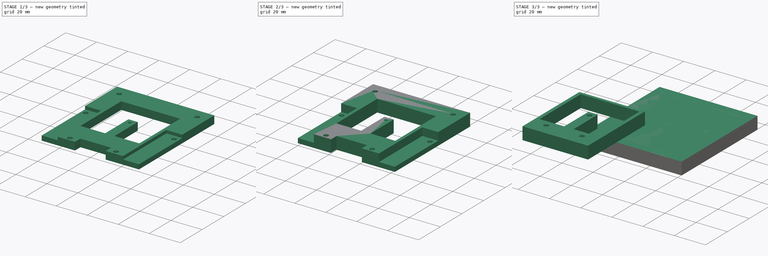
[diagram: build sequence overview — one tinted view per stage of 3, left to right]
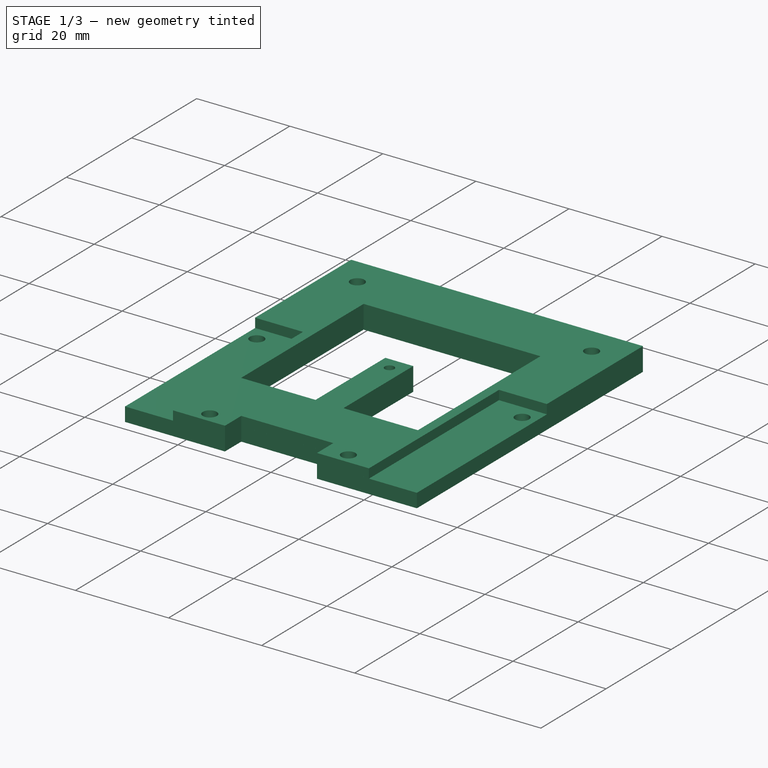
[diagram: stage 1 of 3 — iso view after this stage's code; geometry added in this stage tinted green]
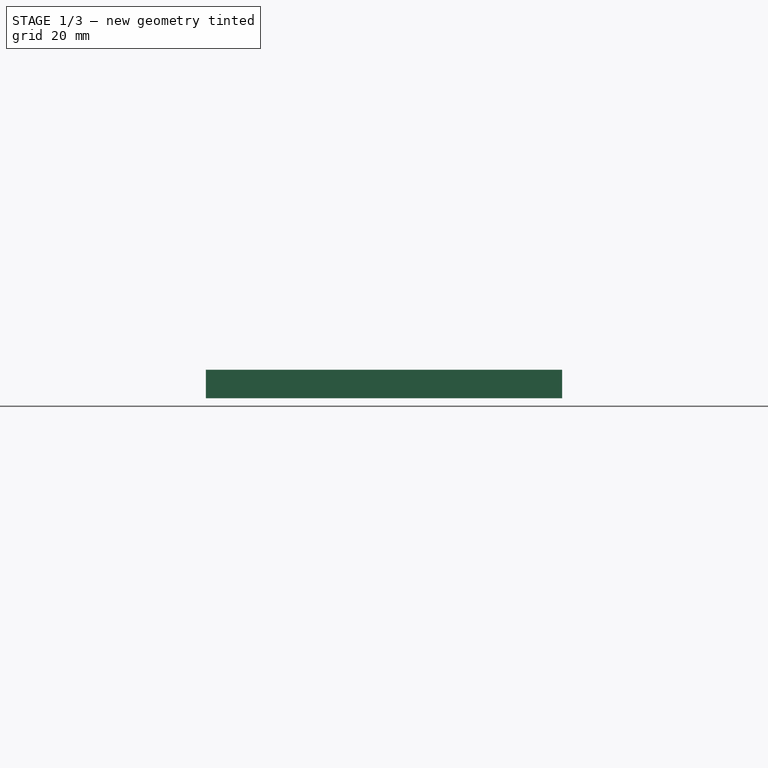
[diagram: stage 1 of 3 — front view after this stage's code; geometry added in this stage tinted green]
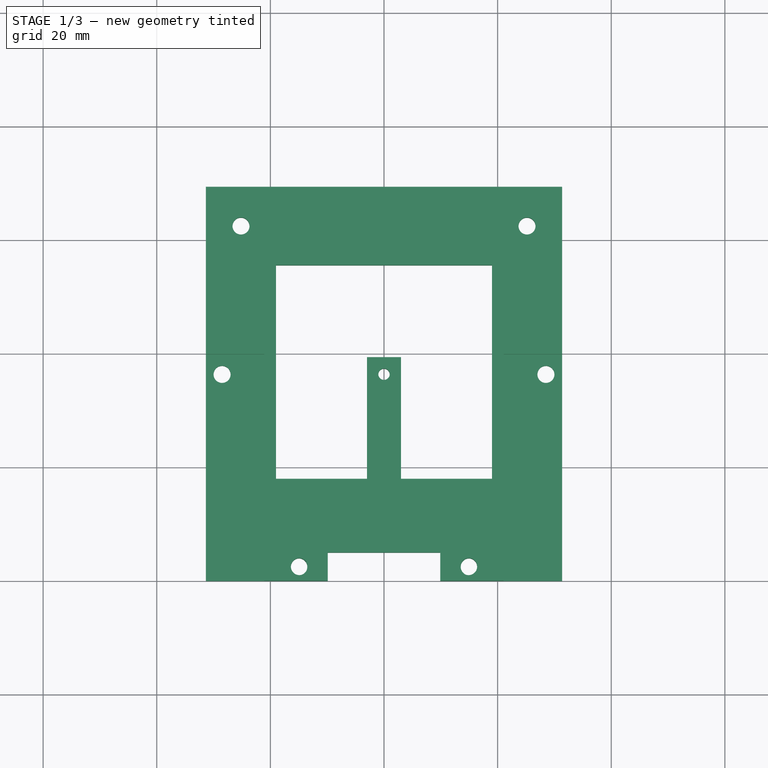
[diagram: stage 1 of 3 — top view after this stage's code; geometry added in this stage tinted green]
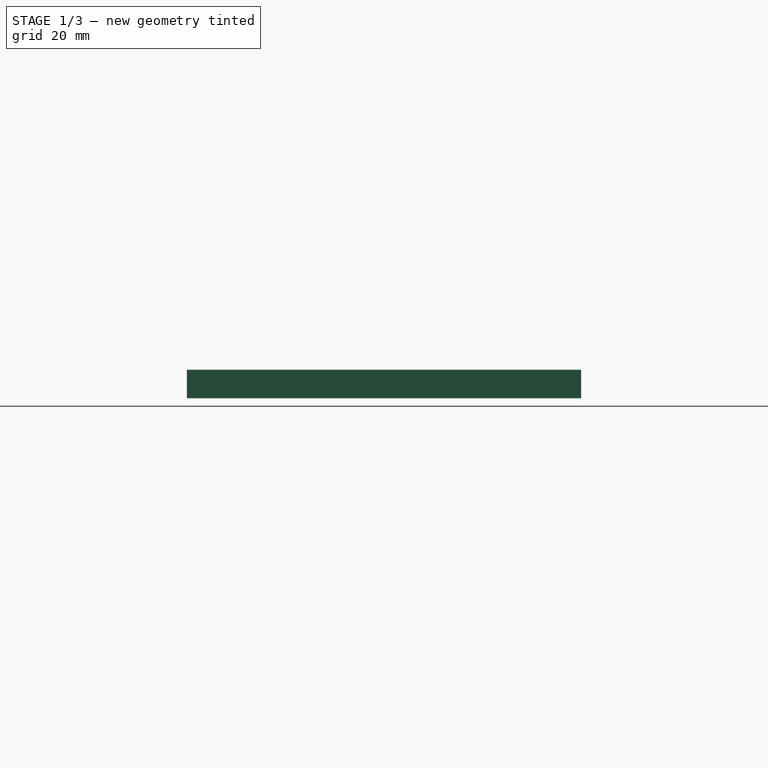
[diagram: stage 1 of 3 — right view after this stage's code; geometry added in this stage tinted green]
FCSTD DOCUMENT  (FreeCAD 0.17R13541 (Git))
Label: fusion_platte
License: All rights reserved
LicenseURL: http://en.wikipedia.org/wiki/All_rights_reserved
objects: Path::FeaturePython×15, Sketcher::SketchObject×3, PartDesign::Pad×3, PartDesign::Body×3, Part::FeaturePython×2, Part::MultiFuse×1, App::FeaturePython×1, Path::FeatureCompoundPython×1
note: 19 computed .brp shape members not serialized (recipe doc carries the construction recipe); baked Part::Feature solids carry a one-line shape summary decoded from their .brp

FEATURE [PartDesign::Body] Body  label="platte1"
  Group = -> [Sketch,Pad]
  Origin = -> Origin
  Tip = -> Pad
FEATURE [Sketcher::SketchObject] Sketch001
  MapMode = 5
  Support = -> [XY_Plane001]
  sketch-geometry (25):
    g0: LineSegment StartX=-31.35 StartY=69.37 StartZ=0 EndX=-31.35 EndY=39.9 EndZ=0
    g1: LineSegment StartX=-31.35 StartY=39.9 StartZ=0 EndX=-21.05 EndY=39.9 EndZ=0
    g2: LineSegment StartX=-21.05 StartY=39.9 StartZ=0 EndX=-21.05 EndY=0 EndZ=0
    g3: LineSegment StartX=-21.05 StartY=0 StartZ=0 EndX=-9.89 EndY=0 EndZ=0
    g4: LineSegment StartX=-9.89 StartY=0 StartZ=0 EndX=-9.89 EndY=5 EndZ=0
    g5: LineSegment StartX=-9.89 StartY=5 StartZ=0 EndX=9.89 EndY=5 EndZ=0
    g6: LineSegment StartX=9.89 StartY=5 StartZ=0 EndX=9.89 EndY=0 EndZ=0
    g7: LineSegment StartX=9.89 StartY=0 StartZ=0 EndX=21.05 EndY=0 EndZ=0
    g8: LineSegment StartX=21.05 StartY=0 StartZ=0 EndX=21.05 EndY=39.9 EndZ=0
    g9: LineSegment StartX=21.05 StartY=39.9 StartZ=0 EndX=31.35 EndY=39.9 EndZ=0
    g10: LineSegment StartX=31.35 StartY=39.9 StartZ=0 EndX=31.35 EndY=69.37 EndZ=0
    g11: LineSegment StartX=31.35 StartY=69.37 StartZ=0 EndX=-31.35 EndY=69.37 EndZ=0
    g12: LineSegment StartX=-19 StartY=55.56 StartZ=0 EndX=-19 EndY=17.96 EndZ=0
    g13: LineSegment StartX=-19 StartY=17.96 StartZ=0 EndX=-3 EndY=17.96 EndZ=0
    g14: LineSegment StartX=-3 StartY=17.96 StartZ=0 EndX=-3 EndY=39.37 EndZ=0
    g15: LineSegment StartX=-3 StartY=39.37 StartZ=0 EndX=3 EndY=39.37 EndZ=0
    g16: LineSegment StartX=3 StartY=39.37 StartZ=0 EndX=3 EndY=17.96 EndZ=0
    g17: LineSegment StartX=3 StartY=17.96 StartZ=0 EndX=19 EndY=17.96 EndZ=0
    g18: LineSegment StartX=19 StartY=17.96 StartZ=0 EndX=19 EndY=55.56 EndZ=0
    g19: LineSegment StartX=19 StartY=55.56 StartZ=0 EndX=-19 EndY=55.56 EndZ=0
    g20: Circle CenterX=0 CenterY=36.37 CenterZ=0 NormalX=0 NormalY=0 NormalZ=1 AngleXU=0 Radius=1
    g21: Circle CenterX=-14.89 CenterY=2.5 CenterZ=0 NormalX=0 NormalY=0 NormalZ=1 AngleXU=0 Radius=1.5
    g22: Circle CenterX=14.89 CenterY=2.5 CenterZ=0 NormalX=0 NormalY=0 NormalZ=1 AngleXU=0 Radius=1.5
    g23: Circle CenterX=-25.17 CenterY=62.46 CenterZ=0 NormalX=0 NormalY=0 NormalZ=1 AngleXU=0 Radius=1.5
    g24: Circle CenterX=25.17 CenterY=62.46 CenterZ=0 NormalX=0 NormalY=0 NormalZ=1 AngleXU=0 Radius=1.5
  constraints (75):
    c: Coincident(g0,g1)
    c: Horizontal(g1)
    c: Coincident(g1,g2)
    c: Vertical(g2)
    c: Coincident(g2,g3)
    c: Coincident(g3,g4)
    c: Vertical(g4)
    c: Coincident(g4,g5)
    c: Horizontal(g5)
    c: Coincident(g5,g6)
    c: Coincident(g6,g7)
    c: Horizontal(g7)
    c: Coincident(g7,g8)
    c: Vertical(g8)
    c: Coincident(g8,g9)
    c: Coincident(g9,g10)
    c: Coincident(g10,g11)
    c: Coincident(g11,g0)
    c: Horizontal(g11)
    c: Vertical(g0)
    c: Vertical(g10)
    c: Vertical(g6)
    c: Horizontal(g3)
    c: Equal(g6,g4)
    c: Equal(g7,g3)
    c: Horizontal(g9)
    c: Equal(g1,g9)
    c: DistanceX(g11,g11) = 62.7
    c: Symmetric(g0,g10,g-2)
    c: DistanceY(g4,g4) = 5
    c: DistanceX(g3,g3) = 11.16
    c: DistanceX(g1,g1) = 10.3
    c: DistanceY(g8,g8) = 39.9
    c: Equal(g2,g8)
    c: DistanceY(g10,g10) = 29.47
    c: PointOnObject(g6,g-1)
    c: Vertical(g12)
    c: Coincident(g12,g13)
    c: Coincident(g13,g14)
    c: Vertical(g14)
    c: Coincident(g14,g15)
    c: Horizontal(g15)
    c: Coincident(g15,g16)
    c: Vertical(g16)
    c: Coincident(g16,g17)
    c: Horizontal(g17)
    c: Coincident(g17,g18)
    c: Vertical(g18)
    c: Coincident(g18,g19)
    c: Horizontal(g19)
    c: Coincident(g19,g12)
    c: Symmetric(g12,g18,g-2)
    c: Horizontal(g13)
    c: DistanceX(g19,g19) = 38
    c: DistanceX(g13,g13) = 16
    c: Equal(g13,g17)
    c: DistanceY(g12,g12) = 37.6
    c: Distance(g18,g11) = 13.81
    c: Equal(g18,g12)
    c: DistanceY(g14,g14) = 21.41
    c: PointOnObject(g20,g-2)
    c: Radius(g20) = 1
    c: Distance(g20,g17) = 18.41
    c: Distance(g21,g-1) = 2.5
    c: Distance(g22,g-1) = 2.5
    c: Distance(g21,g2) = 6.16
    c: Distance(g22,g8) = 6.16
    c: Radius(g22) = 1.5
    c: Radius(g21) = 1.5
    c: Radius(g23) = 1.5
    c: Radius(g24) = 1.5
    c: Distance(g23,g11) = 6.91
    c: Distance(g24,g11) = 6.91
    c: Distance(g23,g0) = 6.18
    c: Distance(g24,g10) = 6.18
FEATURE [PartDesign::Pad] Pad001
  Length = 5
  Length2 = 100
  Profile = -> Sketch001
  Type = 0
FEATURE [PartDesign::Body] Body001  label="Platte2"
  Group = -> [Sketch001,Pad001]
  Origin = -> Origin001
  Placement = pos=(0,0,3) rot=(0,0,1;0rad)
  Tip = -> Pad001
FEATURE [Sketcher::SketchObject] Sketch002
  MapMode = 5
  Support = -> [XY_Plane002]
  sketch-geometry (23):
    g0: LineSegment StartX=-31.35 StartY=69.37 StartZ=0 EndX=-31.35 EndY=0 EndZ=0
    g1: LineSegment StartX=-31.35 StartY=0 StartZ=0 EndX=-10 EndY=0 EndZ=0
    g2: LineSegment StartX=-10 StartY=0 StartZ=0 EndX=-10 EndY=5 EndZ=0
    g3: LineSegment StartX=-10 StartY=5 StartZ=0 EndX=10 EndY=5 EndZ=0
    g4: LineSegment StartX=10 StartY=5 StartZ=0 EndX=10 EndY=0 EndZ=0
    g5: LineSegment StartX=10 StartY=0 StartZ=0 EndX=31.35 EndY=0 EndZ=0
    g6: LineSegment StartX=31.35 StartY=0 StartZ=0 EndX=31.35 EndY=69.37 EndZ=0
    g7: LineSegment StartX=31.35 StartY=69.37 StartZ=0 EndX=-31.35 EndY=69.37 EndZ=0
    g8: LineSegment StartX=-19 StartY=55.56 StartZ=0 EndX=-19 EndY=17.96 EndZ=0
    g9: LineSegment StartX=-19 StartY=17.96 StartZ=0 EndX=-3 EndY=17.96 EndZ=0
    g10: LineSegment StartX=-3 StartY=17.96 StartZ=0 EndX=-3 EndY=39.36 EndZ=0
    g11: LineSegment StartX=-3 StartY=39.36 StartZ=0 EndX=3 EndY=39.36 EndZ=0
    g12: LineSegment StartX=3 StartY=39.36 StartZ=0 EndX=3 EndY=17.96 EndZ=0
    g13: LineSegment StartX=3 StartY=17.96 StartZ=0 EndX=19 EndY=17.96 EndZ=0
    g14: LineSegment StartX=19 StartY=17.96 StartZ=0 EndX=19 EndY=55.56 EndZ=0
    g15: LineSegment StartX=19 StartY=55.56 StartZ=0 EndX=-19 EndY=55.56 EndZ=0
    g16: Circle CenterX=-25.17 CenterY=62.47 CenterZ=0 NormalX=0 NormalY=0 NormalZ=1 AngleXU=0 Radius=1.5
    g17: Circle CenterX=25.17 CenterY=62.47 CenterZ=0 NormalX=0 NormalY=0 NormalZ=1 AngleXU=0 Radius=1.5
    g18: Circle CenterX=-28.5 CenterY=36.37 CenterZ=0 NormalX=0 NormalY=0 NormalZ=1 AngleXU=0 Radius=1.5
    g19: Circle CenterX=28.5 CenterY=36.37 CenterZ=0 NormalX=0 NormalY=0 NormalZ=1 AngleXU=0 Radius=1.5
    g20: Circle CenterX=-15 CenterY=2.5 CenterZ=0 NormalX=0 NormalY=0 NormalZ=1 AngleXU=0 Radius=1.5
    g21: Circle CenterX=15 CenterY=2.5 CenterZ=0 NormalX=0 NormalY=0 NormalZ=1 AngleXU=0 Radius=1.5
    g22: Circle CenterX=0 CenterY=36.37 CenterZ=0 NormalX=0 NormalY=0 NormalZ=1 AngleXU=0 Radius=1
  constraints (69):
    c: Vertical(g0)
    c: Coincident(g0,g1)
    c: Horizontal(g1)
    c: Coincident(g1,g2)
    c: Coincident(g2,g3)
    c: Horizontal(g3)
    c: Coincident(g3,g4)
    c: Vertical(g4)
    c: Coincident(g4,g5)
    c: Coincident(g5,g6)
    c: Coincident(g6,g7)
    c: Coincident(g7,g0)
    c: Horizontal(g7)
    c: Vertical(g6)
    c: Vertical(g2)
    c: Horizontal(g5)
    c: DistanceY(g2,g2) = 5
    c: PointOnObject(g0,g-1)
    c: Equal(g1,g5)
    c: Symmetric(g0,g6,g-2)
    c: DistanceY(g0,g0) = 69.37
    c: Equal(g6,g0)
    c: DistanceX(g7,g7) = 62.7
    c: DistanceX(g3,g3) = 20
    c: Vertical(g8)
    c: Coincident(g8,g9)
    c: Coincident(g9,g10)
    c: Coincident(g10,g11)
    c: Coincident(g11,g12)
    c: Vertical(g12)
    c: Coincident(g12,g13)
    c: Coincident(g13,g14)
    c: Coincident(g14,g15)
    c: Coincident(g15,g8)
    c: Horizontal(g15)
    c: Horizontal(g9)
    c: Horizontal(g13)
    c: Horizontal(g11)
    c: Vertical(g14)
    c: Vertical(g10)
    c: Equal(g10,g12)
    c: Equal(g13,g9)
    c: Symmetric(g8,g14,g-2)
    c: DistanceY(g14,g14) = 37.6
    c: Distance(g14,g7) = 13.81
    c: DistanceX(g11,g11) = 6
    c: DistanceX(g15,g15) = 38
    c: DistanceY(g12,g12) = 21.4
    c: Distance(g20,g1) = 2.5
    c: Distance(g21,g5) = 2.5
    c: Radius(g21) = 1.5
    c: Radius(g20) = 1.5
    c: Radius(g18) = 1.5
    c: Radius(g19) = 1.5
    c: Radius(g17) = 1.5
    c: Radius(g16) = 1.5
    c: Distance(g21,g6) = 16.35
    c: Distance(g20,g0) = 16.35
    c: Distance(g19,g6) = 2.85
    c: Distance(g18,g0) = 2.85
    c: Distance(g19,g5) = 36.37
    c: Distance(g18,g1) = 36.37
    c: Distance(g16,g0) = 6.18
    c: Distance(g17,g6) = 6.18
    c: Distance(g17,g7) = 6.9
    c: Distance(g16,g7) = 6.9
    c: PointOnObject(g22,g-2)
    c: Distance(g22,g13) = 18.41
    c: Radius(g22) = 1
FEATURE [PartDesign::Pad] Pad002
  Length = 3
  Length2 = 100
  Profile = -> Sketch002
  Type = 0
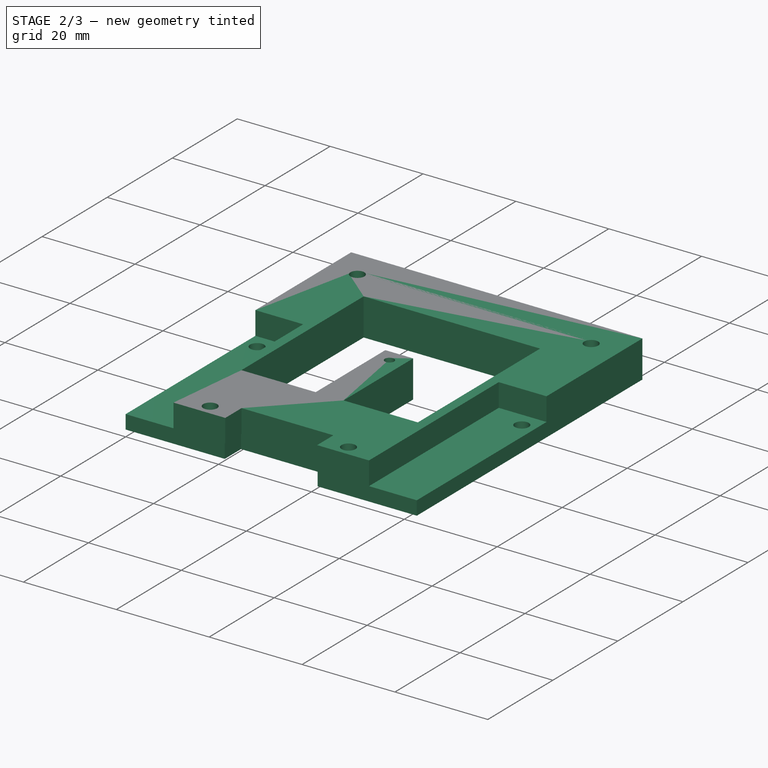
[diagram: stage 2 of 3 — iso view after this stage's code; geometry added in this stage tinted green]
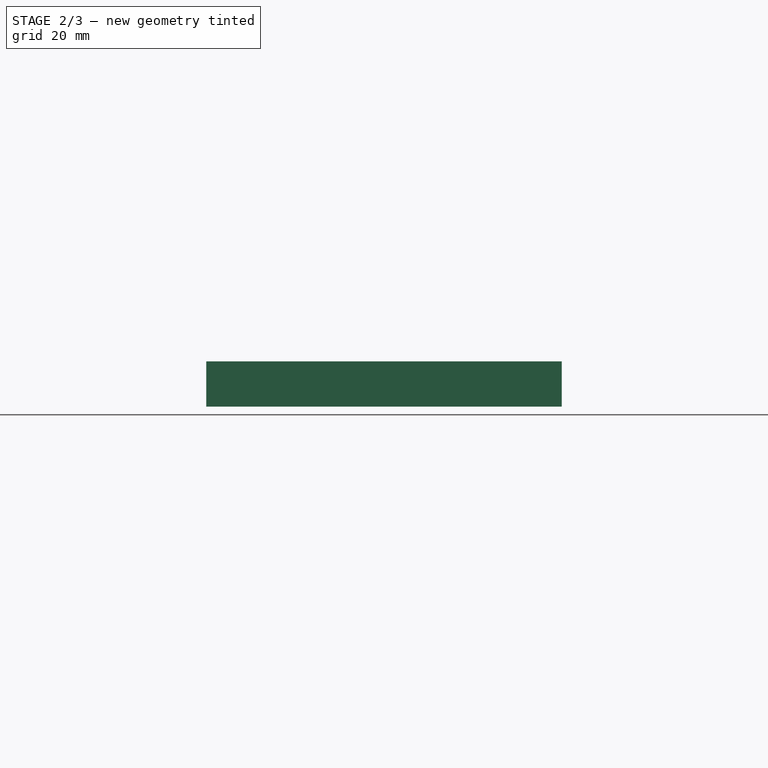
[diagram: stage 2 of 3 — front view after this stage's code; geometry added in this stage tinted green]
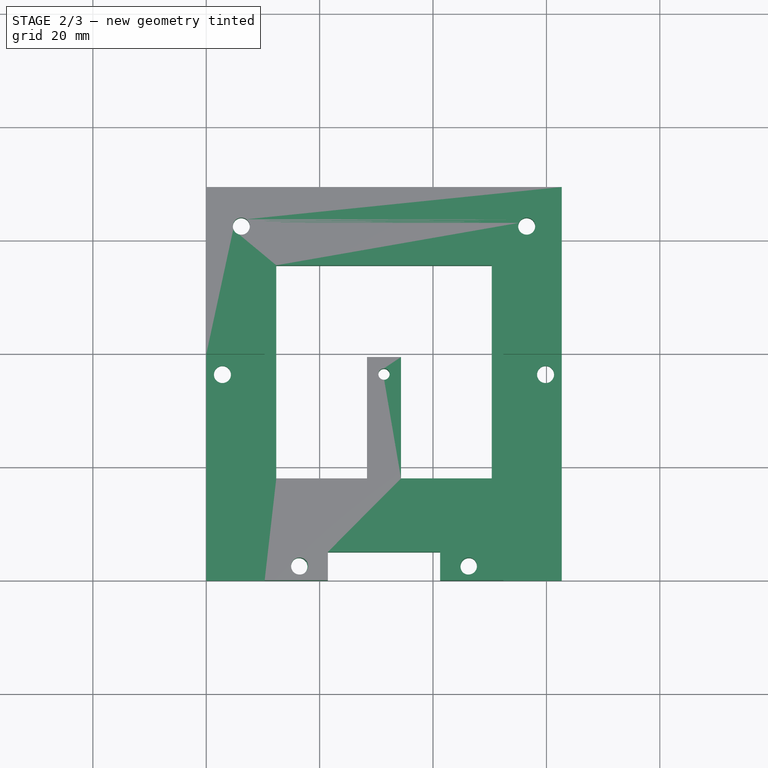
[diagram: stage 2 of 3 — top view after this stage's code; geometry added in this stage tinted green]
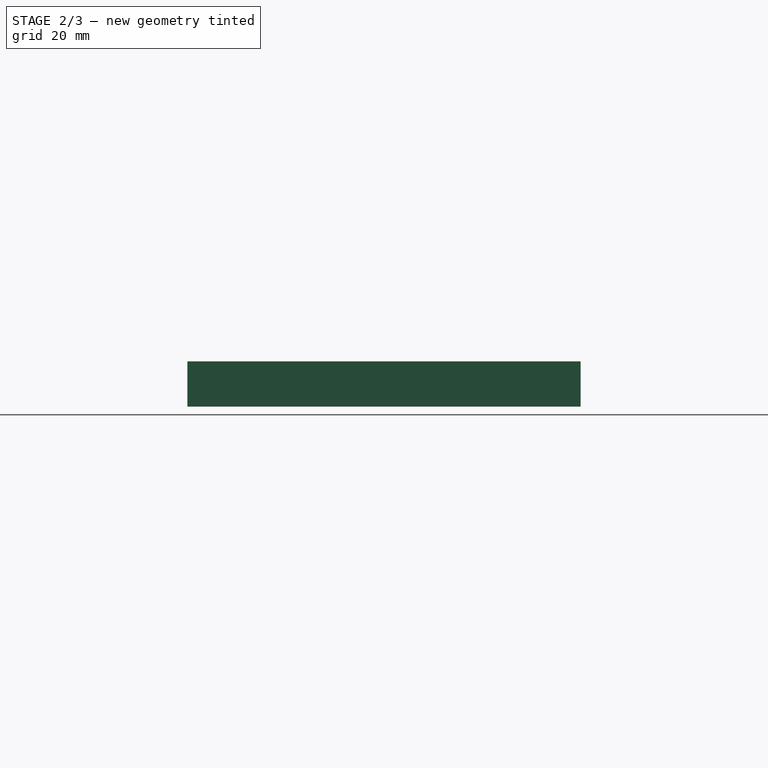
[diagram: stage 2 of 3 — right view after this stage's code; geometry added in this stage tinted green]
FEATURE [PartDesign::Body] Body002  label="platte3"
  Group = -> [Sketch002,Pad002]
  Origin = -> Origin002
  Tip = -> Pad002
FEATURE [Part::MultiFuse] Fusion
  Shapes = -> [Body001,Body002]
FEATURE [App::FeaturePython] SetupSheet  # Path/CAM operation (typed FeaturePython)
  ClearanceHeightExpression = StartDepth+SetupSheet.ClearanceHeightOffset
  ClearanceHeightOffset = 5
  FinalDepthExpression = OpFinalDepth
  HorizRapid = 0
  SafeHeightExpression = StartDepth+SetupSheet.SafeHeightOffset
  SafeHeightOffset = 3
  StartDepthExpression = OpStartDepth
  StepDownExpression = OpToolDiameter
  VertRapid = 0
FEATURE [Part::FeaturePython] Clone  label="Base-Fusion"  # Draft clone (typed FeaturePython)
  AttacherType = Attacher::AttachEngine3D
  Fuse = false
  Objects = -> [Fusion]
  PathResource = Base
  Placement = pos=(31.35,0,-8) rot=(0,0,1;0rad)
  Scale = (1,1,1)
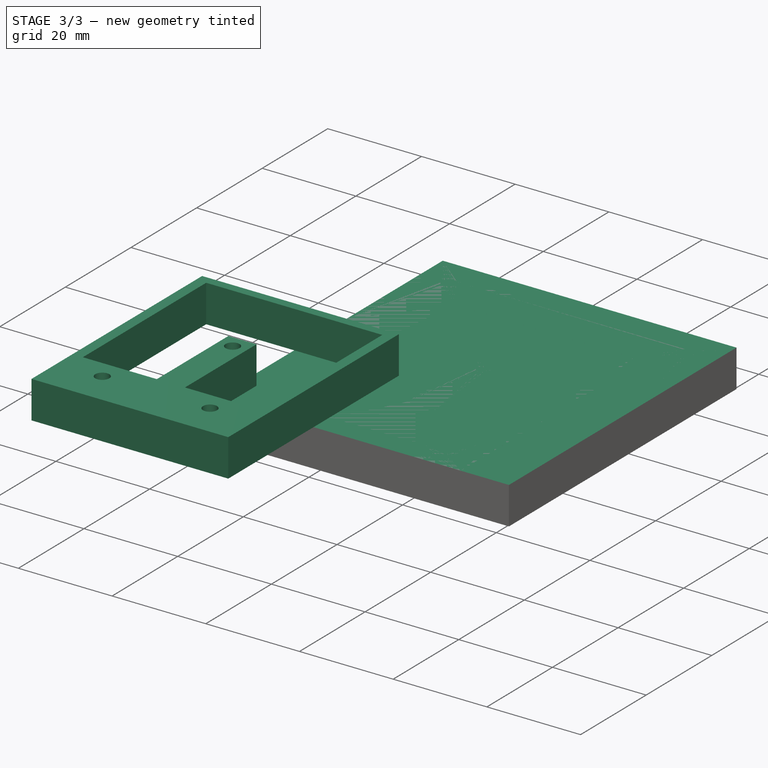
[diagram: stage 3 of 3 — iso view after this stage's code; geometry added in this stage tinted green]
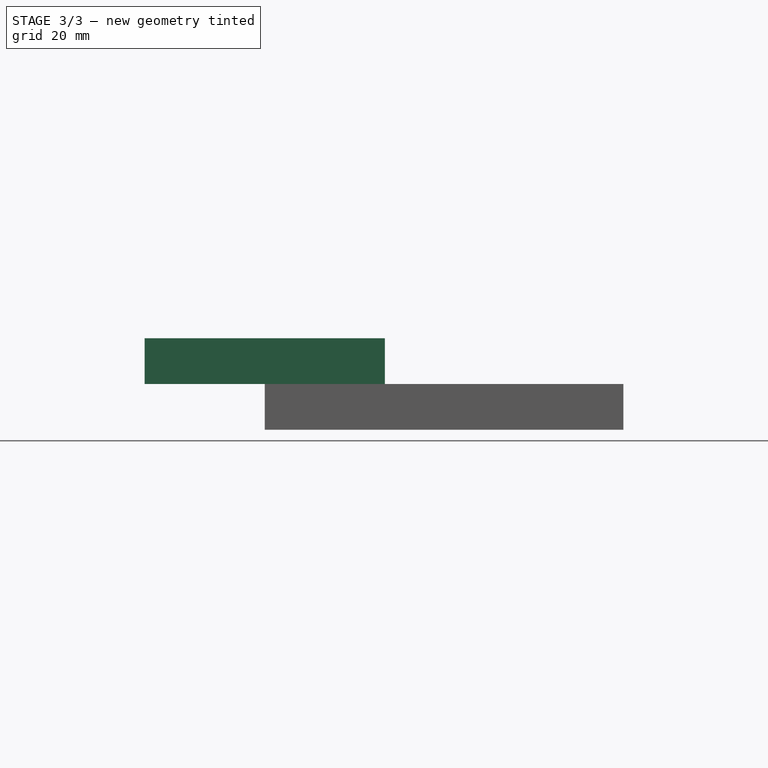
[diagram: stage 3 of 3 — front view after this stage's code; geometry added in this stage tinted green]
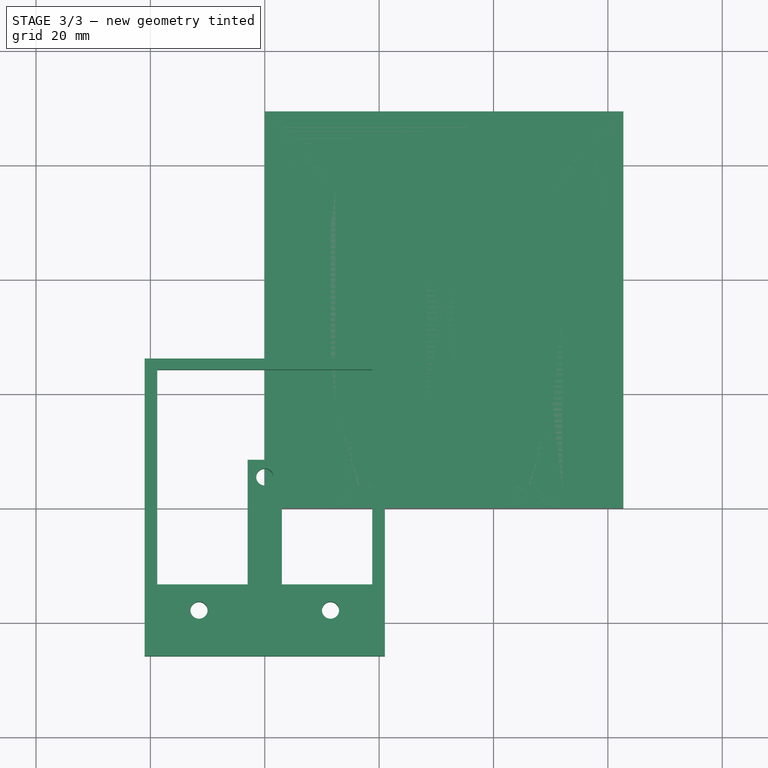
[diagram: stage 3 of 3 — top view after this stage's code; geometry added in this stage tinted green]
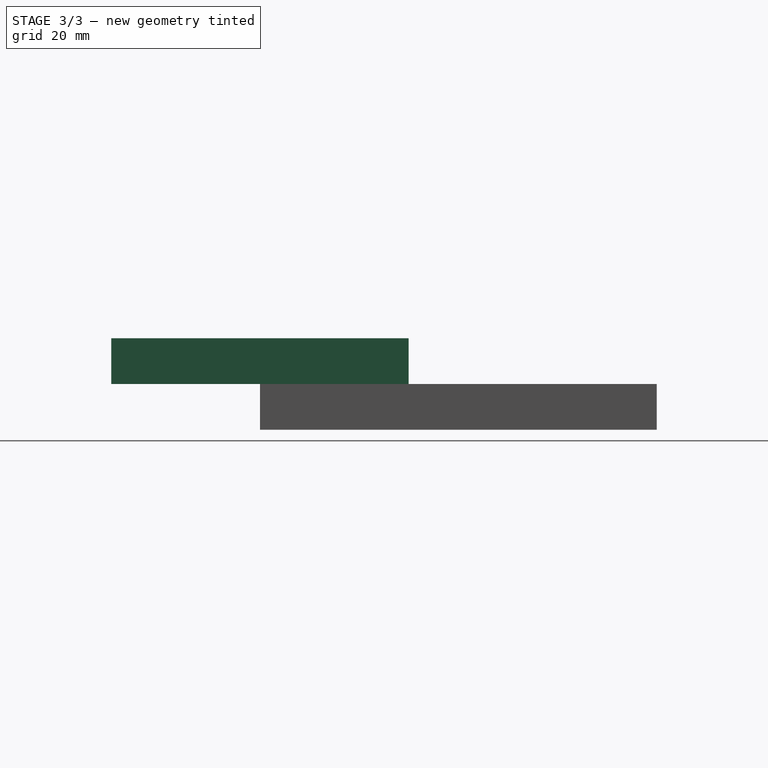
[diagram: stage 3 of 3 — right view after this stage's code; geometry added in this stage tinted green]
FEATURE [Sketcher::SketchObject] Sketch
  MapMode = 5
  Support = -> [XY_Plane]
  sketch-geometry (15):
    g0: LineSegment StartX=-21 StartY=26 StartZ=0 EndX=21 EndY=26 EndZ=0
    g1: LineSegment StartX=21 StartY=26 StartZ=0 EndX=21 EndY=-26 EndZ=0
    g2: LineSegment StartX=21 StartY=-26 StartZ=0 EndX=-21 EndY=-26 EndZ=0
    g3: LineSegment StartX=-21 StartY=-26 StartZ=0 EndX=-21 EndY=26 EndZ=0
    g4: LineSegment StartX=-18.8 StartY=24.1 StartZ=0 EndX=-18.8 EndY=-13.5 EndZ=0
    g5: LineSegment StartX=-18.8 StartY=-13.5 StartZ=0 EndX=-3 EndY=-13.5 EndZ=0
    g6: LineSegment StartX=-3 StartY=-13.5 StartZ=0 EndX=-3 EndY=8.3 EndZ=0
    g7: LineSegment StartX=-3 StartY=8.3 StartZ=0 EndX=3 EndY=8.3 EndZ=0
    g8: LineSegment StartX=3 StartY=8.3 StartZ=0 EndX=3 EndY=-13.5 EndZ=0
    g9: LineSegment StartX=3 StartY=-13.5 StartZ=0 EndX=18.8 EndY=-13.5 EndZ=0
    g10: LineSegment StartX=18.8 StartY=-13.5 StartZ=0 EndX=18.8 EndY=24.1 EndZ=0
    g11: LineSegment StartX=18.8 StartY=24.1 StartZ=0 EndX=-18.8 EndY=24.1 EndZ=0
    g12: Circle CenterX=0 CenterY=5.3 CenterZ=0 NormalX=0 NormalY=0 NormalZ=1 AngleXU=0 Radius=1.5
    g13: Circle CenterX=11.5 CenterY=-18 CenterZ=0 NormalX=0 NormalY=0 NormalZ=1 AngleXU=0 Radius=1.5
    g14: Circle CenterX=-11.5 CenterY=-18 CenterZ=0 NormalX=0 NormalY=0 NormalZ=1 AngleXU=0 Radius=1.5
  constraints (45):
    c: Coincident(g0,g1)
    c: Coincident(g1,g2)
    c: Coincident(g2,g3)
    c: Coincident(g3,g0)
    c: Horizontal(g0)
    c: Horizontal(g2)
    c: Vertical(g1)
    c: Vertical(g3)
    c: Symmetric(g0,g0,g-2)
    c: Symmetric(g0,g2,g-1)
    c: DistanceY(g3,g3) = 52
    c: DistanceX(g0,g0) = 42
    c: Vertical(g4)
    c: Coincident(g4,g5)
    c: Horizontal(g5)
    c: Coincident(g5,g6)
    c: Coincident(g6,g7)
    c: Coincident(g7,g8)
    c: Vertical(g8)
    c: Coincident(g8,g9)
    c: Coincident(g9,g10)
    c: Vertical(g10)
    c: Coincident(g10,g11)
    c: Coincident(g11,g4)
    c: Horizontal(g11)
    c: Vertical(g6)
    c: Horizontal(g7)
    c: Horizontal(g9)
    c: Equal(g10,g4)
    c: Equal(g5,g9)
    c: Distance(g4,g3) = 2.2
    c: Distance(g5,g3) = 18
    c: Distance(g8,g3) = 24
    c: Distance(g8,g2) = 12.5
    c: Distance(g4,g2) = 50.1
    c: Distance(g7,g2) = 34.3
    c: PointOnObject(g12,g-2)
    c: Distance(g14,g3) = 9.5
    c: Distance(g13,g2) = 8
    c: Distance(g14,g2) = 8
    c: Distance(g13,g3) = 32.5
    c: Radius(g14) = 1.5
    c: Radius(g13) = 1.5
    c: Distance(g12,g2) = 31.3
    c: Radius(g12) = 1.5
FEATURE [PartDesign::Pad] Pad
  Length = 8
  Length2 = 100
  Profile = -> Sketch
  Type = 0
FEATURE [Path::FeaturePython] Default_Tool  label="Default Tool"  # Path/CAM operation (typed FeaturePython)
  HorizFeed = 0
  HorizRapid = 0
  SpindleDir = 0
  SpindleSpeed = 0
  ToolNumber = 1
  VertFeed = 0
  VertRapid = 0
  expr: HorizRapid = SetupSheet.HorizRapid
  expr: VertRapid = SetupSheet.VertRapid
FEATURE [Part::FeaturePython] Stock001  # WARN: FeaturePython — macro-defined, semantics opaque (R4)
  Height = 8
  Length = 62.7
  Placement = pos=(0,0,-8) rot=(0,0,1;0rad)
  StockType = CreateBox
  Width = 69.37
FEATURE [Path::FeaturePython] T2__fraiser_one_  label="T2: fraiser one "  # Path/CAM operation (typed FeaturePython)
  HorizFeed = 33
  HorizRapid = 0
  SpindleDir = 0
  SpindleSpeed = 15000
  ToolNumber = 2
  VertFeed = 10
  VertRapid = 0
  expr: HorizRapid = SetupSheet.HorizRapid
  expr: VertRapid = SetupSheet.VertRapid
FEATURE [Path::FeaturePython] T7__drill2_5  label="T7: drill2.5"  # Path/CAM operation (typed FeaturePython)
  HorizFeed = 33
  HorizRapid = 0
  SpindleDir = 0
  SpindleSpeed = 24000
  ToolNumber = 7
  VertFeed = 5
  VertRapid = 0
  expr: HorizRapid = SetupSheet.HorizRapid
  expr: VertRapid = SetupSheet.VertRapid
FEATURE [Path::FeaturePython] T8__2mm_drill  label="T8: 2mm drill"  # Path/CAM operation (typed FeaturePython)
  HorizFeed = 33
  HorizRapid = 0
  SpindleDir = 0
  SpindleSpeed = 24000
  ToolNumber = 8
  VertFeed = 5
  VertRapid = 0
  expr: HorizRapid = SetupSheet.HorizRapid
  expr: VertRapid = SetupSheet.VertRapid
FEATURE [Path::FeaturePython] Profile_Edges  # Path/CAM operation (typed FeaturePython)
  Active = true
  AreaParams:
    OpenMode = 0
    Angle = 45.0
    MinArcPoints = 4
    Coplanar = 0
    Tolerance = 1e-07
    CleanDistance = 0.0
    PocketExtraOffset = 0.0
    RoundPrecision = 0.0
    AngleShift = 0.0
    SubjectFill = 0
    PocketMode = 0
    Simplify = False
    SectionTolerance = 1e-06
    MaxArcPoints = 100
    Offset = -3.0
    Accuracy = 0.01
    PocketStepover = 0.0
    ClipFill = 0
    ToolRadius = 1.0
    Outline = False
    ClipperScale = 10000000.0
    FromCenter = False
    Explode = False
    EndType = 0
    Shift = 0.0
    ExtraPass = 0
    Project = False
    JoinType = 0
    Thicken = False
    Stepdown = 1.0
    SectionMode = 2
    MiterLimit = 2.0
    Deflection = 0.01
    Reorient = True
    FitArcs = True
    SectionCount = -1
    SectionOffset = 0.0
    Stepover = 0.0
    Unit = 1.0
    Fill = 0
  Base = -> [Clone]
  ClearanceHeight = 5
  Direction = 0
  FinalDepth = -8
  JoinType = 0
  MiterLimit = 0.1
  OffsetExtra = 0
  OpFinalDepth = 0
  OpStartDepth = 6
  OpToolDiameter = 6
  PathParams = {'resume_height': 3.0, 'feedrate': 33.0, 'verbose': True, 'orientation': 1, 'return_end': True, 'preamble': False, 'retraction': 5.0, 'feedrate_v': 10.0}
  SafeHeight = 3
  Side = 1
  StartDepth = 0
  StartPoint = (0,0,0)
  StepDown = 6
  ToolController = -> T2__fraiser_one_
  UseComp = true
  UseStartPoint = false
  expr: ClearanceHeight = StartDepth + SetupSheet.ClearanceHeightOffset
  expr: SafeHeight = StartDepth + SetupSheet.SafeHeightOffset
  expr: StepDown = OpToolDiameter
FEATURE [Path::FeaturePython] RampEntryDressup  # Path/CAM operation (typed FeaturePython)
  Angle = 60
  Base = -> Profile_Edges
  CustomFeedRate = 0
  Method = 2
  RampFeedRate = 0
FEATURE [Path::FeaturePython] Profile_Edges001  # Path/CAM operation (typed FeaturePython)
  Active = true
  AreaParams:
    OpenMode = 0
    Angle = 45.0
    MinArcPoints = 4
    Coplanar = 0
    Tolerance = 1e-07
    CleanDistance = 0.0
    PocketExtraOffset = 0.0
    RoundPrecision = 0.0
    AngleShift = 0.0
    SubjectFill = 0
    PocketMode = 0
    Simplify = False
    SectionTolerance = 1e-06
    MaxArcPoints = 100
    Offset = 3.0
    Accuracy = 0.01
    PocketStepover = 0.0
    ClipFill = 0
    ToolRadius = 1.0
    Outline = False
    ClipperScale = 10000000.0
    FromCenter = False
    Explode = False
    EndType = 0
    Shift = 0.0
    ExtraPass = 0
    Project = False
    JoinType = 0
    Thicken = False
    Stepdown = 1.0
    SectionMode = 2
    MiterLimit = 2.0
    Deflection = 0.01
    Reorient = True
    FitArcs = True
    SectionCount = -1
    SectionOffset = 0.0
    Stepover = 0.0
    Unit = 1.0
    Fill = 0
  Base = -> [Clone]
  ClearanceHeight = 5
  Direction = 0
  FinalDepth = -5
  JoinType = 0
  MiterLimit = 0.1
  OffsetExtra = 0
  OpFinalDepth = 0
  OpStartDepth = 6
  OpToolDiameter = 6
  PathParams = {'resume_height': 3.0, 'feedrate': 33.0, 'verbose': True, 'orientation': 1, 'return_end': True, 'preamble': False, 'retraction': 5.0, 'feedrate_v': 10.0}
  SafeHeight = 3
  Side = 0
  StartDepth = 0
  StartPoint = (0,0,0)
  StepDown = 6
  ToolController = -> T2__fraiser_one_
  UseComp = true
  UseStartPoint = false
  expr: ClearanceHeight = StartDepth + SetupSheet.ClearanceHeightOffset
  expr: SafeHeight = StartDepth + SetupSheet.SafeHeightOffset
  expr: StepDown = OpToolDiameter
FEATURE [Path::FeaturePython] DogboneDressup  # Path/CAM operation (typed FeaturePython)
  Base = -> Profile_Edges001
  Custom = 0
  Incision = 0
  Side = 1
  Style = 2
FEATURE [Path::FeaturePython] MillFace  # Path/CAM operation (typed FeaturePython)
  Active = true
  AreaParams:
    OpenMode = 0
    Angle = 45.0
    MinArcPoints = 4
    Coplanar = 0
    Tolerance = 1e-07
    CleanDistance = 0.0
    PocketExtraOffset = 0.0
    RoundPrecision = 0.0
    AngleShift = 0.0
    SubjectFill = 0
    PocketMode = 2
    Simplify = False
    SectionTolerance = 1e-06
    MaxArcPoints = 100
    Offset = 0.0
    Accuracy = 0.01
    PocketStepover = 3.0
    ClipFill = 0
    ToolRadius = 3.0
    Outline = False
    ClipperScale = 10000000.0
    FromCenter = True
    Explode = False
    EndType = 0
    Shift = 0.0
    ExtraPass = 0
    Project = False
    JoinType = 0
    Thicken = False
    Stepdown = 1.0
    SectionMode = 2
    MiterLimit = 2.0
    Deflection = 0.01
    Reorient = True
    FitArcs = True
    SectionCount = -1
    SectionOffset = 0.0
    Stepover = 0.0
    Unit = 1.0
    Fill = 0
  Base = -> [Clone]
  BoundaryShape = 0
  ClearanceHeight = 5
  CutMode = 0
  ExtraOffset = 0
  FinalDepth = -5
  FinishDepth = 0
  KeepToolDown = false
  MinTravel = false
  OffsetPattern = 1
  OpFinalDepth = -5
  OpStartDepth = 0
  OpToolDiameter = 6
  PathParams = {'resume_height': 3.0, 'feedrate': 33.0, 'verbose': True, 'orientation': 1, 'return_end': True, 'preamble': False, 'retraction': 5.0, 'feedrate_v': 10.0}
  SafeHeight = 3
  StartAt = 0
  StartDepth = 0
  StartPoint = (0,0,0)
  StepDown = 6
  StepOver = 50
  ToolController = -> T2__fraiser_one_
  UseStartPoint = false
  ZigZagAngle = 45
  expr: ClearanceHeight = StartDepth + SetupSheet.ClearanceHeightOffset
  expr: SafeHeight = StartDepth + SetupSheet.SafeHeightOffset
  expr: StepDown = OpToolDiameter
  expr: FinalDepth = OpFinalDepth
  expr: StartDepth = OpStartDepth
FEATURE [Path::FeaturePython] Contour  # Path/CAM operation (typed FeaturePython)
  Active = true
  AreaParams:
    OpenMode = 0
    Angle = 45.0
    MinArcPoints = 4
    Coplanar = 2
    Tolerance = 1e-07
    CleanDistance = 0.0
    PocketExtraOffset = 0.0
    RoundPrecision = 0.0
    AngleShift = 0.0
    SubjectFill = 0
    PocketMode = 0
    Simplify = False
    SectionTolerance = 1e-06
    MaxArcPoints = 100
    Offset = 3.0
    Accuracy = 0.01
    PocketStepover = 0.0
    ClipFill = 0
    ToolRadius = 1.0
    Outline = False
    ClipperScale = 10000000.0
    FromCenter = False
    Explode = False
    EndType = 0
    Shift = 0.0
    ExtraPass = 0
    Project = False
    JoinType = 0
    Thicken = False
    Stepdown = 1.0
    SectionMode = 2
    MiterLimit = 2.0
    Deflection = 0.01
    Reorient = True
    FitArcs = True
    SectionCount = -1
    SectionOffset = 0.0
    Stepover = 0.0
    Unit = 1.0
    Fill = 0
  ClearanceHeight = 5
  Direction = 0
  FinalDepth = -8
  JoinType = 0
  MiterLimit = 0.1
  OffsetExtra = 0
  OpFinalDepth = -8
  OpStartDepth = 0
  OpToolDiameter = 6
  PathParams = {'resume_height': 3.0, 'feedrate': 33.0, 'verbose': True, 'orientation': 1, 'return_end': True, 'preamble': False, 'retraction': 5.0, 'feedrate_v': 10.0}
  SafeHeight = 3
  Side = 0
  StartDepth = 0
  StartPoint = (0,0,0)
  StepDown = 6
  ToolController = -> T2__fraiser_one_
  UseComp = true
  UseStartPoint = false
  expr: ClearanceHeight = StartDepth + SetupSheet.ClearanceHeightOffset
  expr: SafeHeight = StartDepth + SetupSheet.SafeHeightOffset
  expr: StepDown = OpToolDiameter
  expr: FinalDepth = OpFinalDepth
  expr: StartDepth = OpStartDepth
FEATURE [Path::FeaturePython] DogboneDressup001  # Path/CAM operation (typed FeaturePython)
  Base = -> Contour
  Custom = 0
  Incision = 0
  Side = 1
  Style = 2
FEATURE [Path::FeaturePython] TagDressup  # Path/CAM operation (typed FeaturePython)
  Angle = 35
  Base = -> DogboneDressup001
  Height = 3
  Positions = (3) [(31.35,72.37,0),(65.7,34.685,0),(-3,34.685,0)]
  Radius = 0
  SegmentationFactor = 50
  Width = 8
FEATURE [Path::FeaturePython] Drilling  # Path/CAM operation (typed FeaturePython)
  Active = true
  AddTipLength = false
  Base = -> [Clone]
  ClearanceHeight = 5
  DwellEnabled = false
  DwellTime = 0
  FinalDepth = -9
  OpFinalDepth = 0
  OpStartDepth = 1
  OpToolDiameter = 2.5
  PeckDepth = 5
  PeckEnabled = true
  RetractHeight = 10
  ReturnLevel = 0
  SafeHeight = 3
  StartDepth = 0
  ToolController = -> T7__drill2_5
  expr: ClearanceHeight = StartDepth + SetupSheet.ClearanceHeightOffset
  expr: SafeHeight = StartDepth + SetupSheet.SafeHeightOffset
FEATURE [Path::FeaturePython] Drilling001  # Path/CAM operation (typed FeaturePython)
  Active = true
  AddTipLength = false
  Base = -> [Clone]
  ClearanceHeight = 5
  DwellEnabled = false
  DwellTime = 0
  FinalDepth = -9
  OpFinalDepth = 0
  OpStartDepth = 1
  OpToolDiameter = 2
  PeckDepth = 5
  PeckEnabled = true
  RetractHeight = 10
  ReturnLevel = 0
  SafeHeight = 3
  StartDepth = 0
  ToolController = -> T8__2mm_drill
  expr: ClearanceHeight = StartDepth + SetupSheet.ClearanceHeightOffset
  expr: SafeHeight = StartDepth + SetupSheet.SafeHeightOffset
FEATURE [Path::FeatureCompoundPython] Operations  # Path/CAM operation (typed FeaturePython)
  Group = -> [Drilling,Drilling001,RampEntryDressup,MillFace,DogboneDressup,TagDressup]
  UsePlacements = false
FEATURE [Path::FeaturePython] Job  # Path/CAM operation (typed FeaturePython)
  Base = -> Clone
  GeometryTolerance = 0.01
  Operations = -> Operations
  PostProcessor = 1
  SetupSheet = -> SetupSheet
  Stock = -> Stock001
  ToolController = -> [Default_Tool,T2__fraiser_one_,T7__drill2_5,T8__2mm_drill]
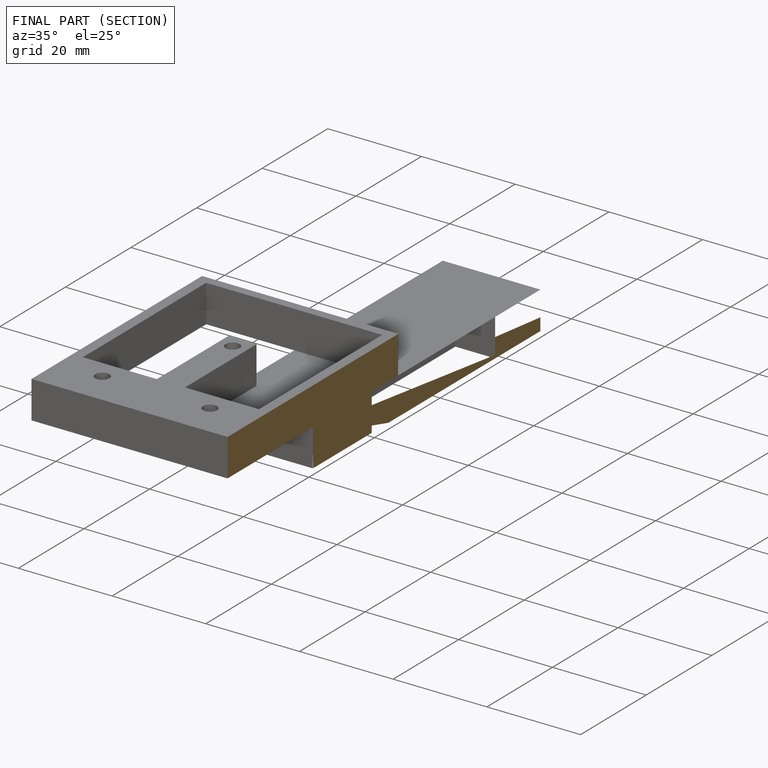
[diagram: finished part — half-section view (interior)]
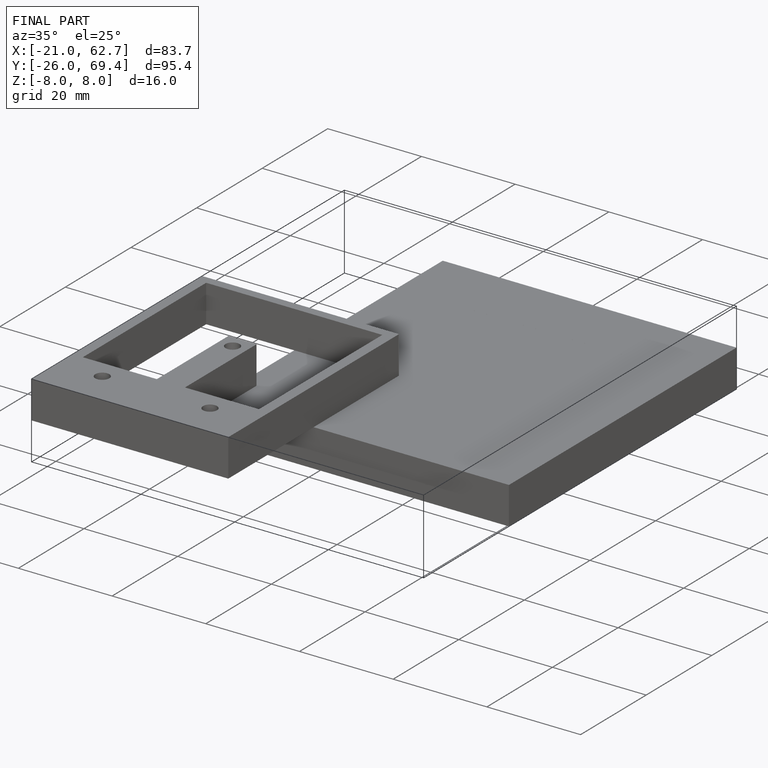
[diagram: finished part — iso view with bounding-box wireframe]
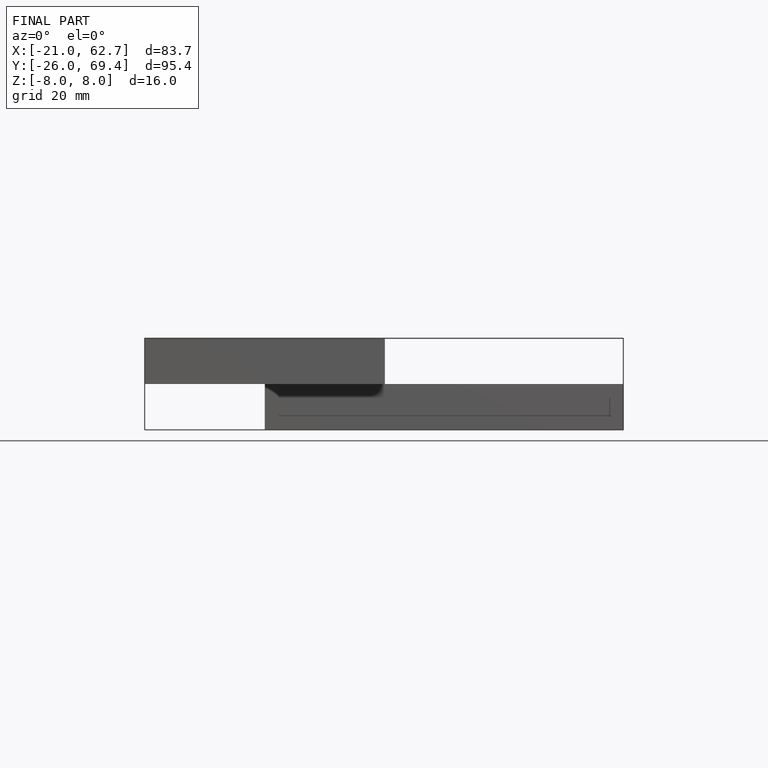
[diagram: finished part — front view with bounding-box wireframe]
